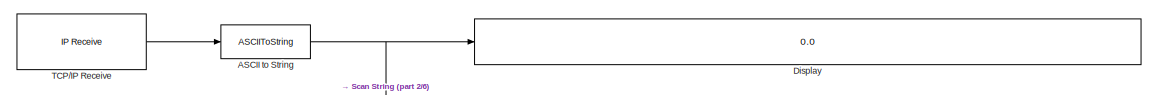
[diagram: root canvas - part 1/6, top right region]
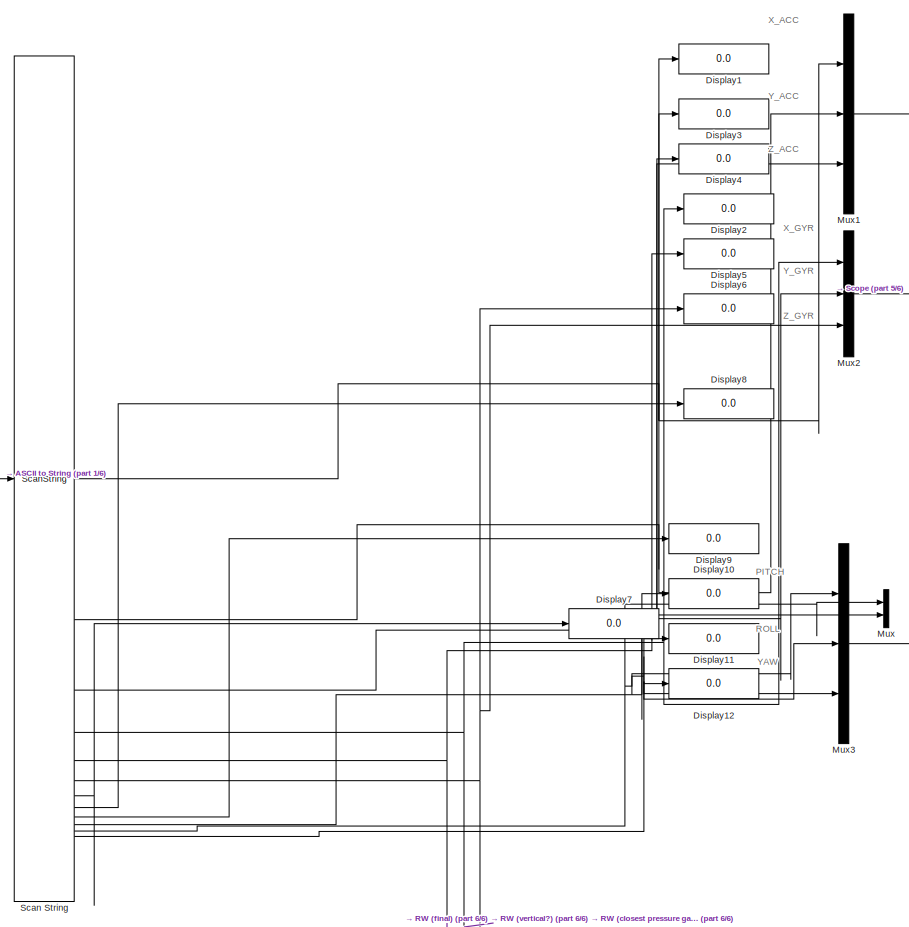
[diagram: root canvas - part 2/6, middle right region]
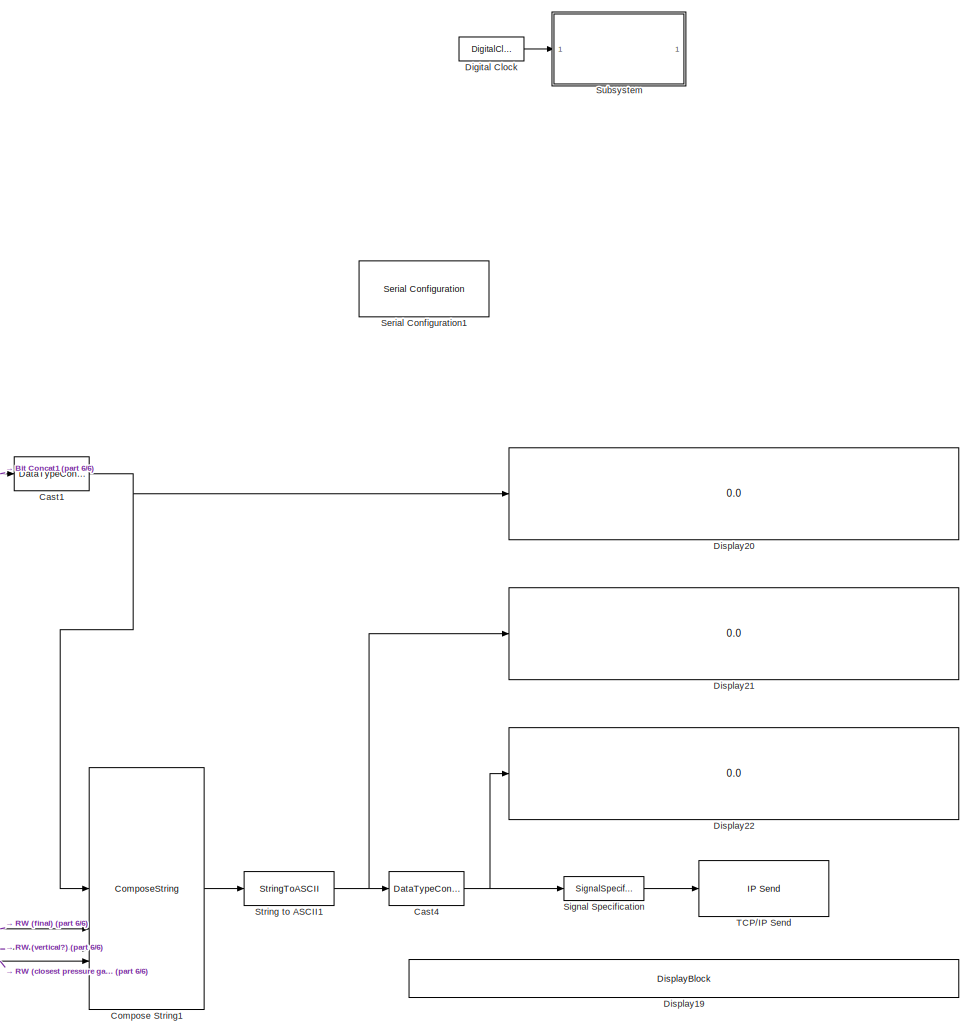
[diagram: root canvas - part 3/6, central region]
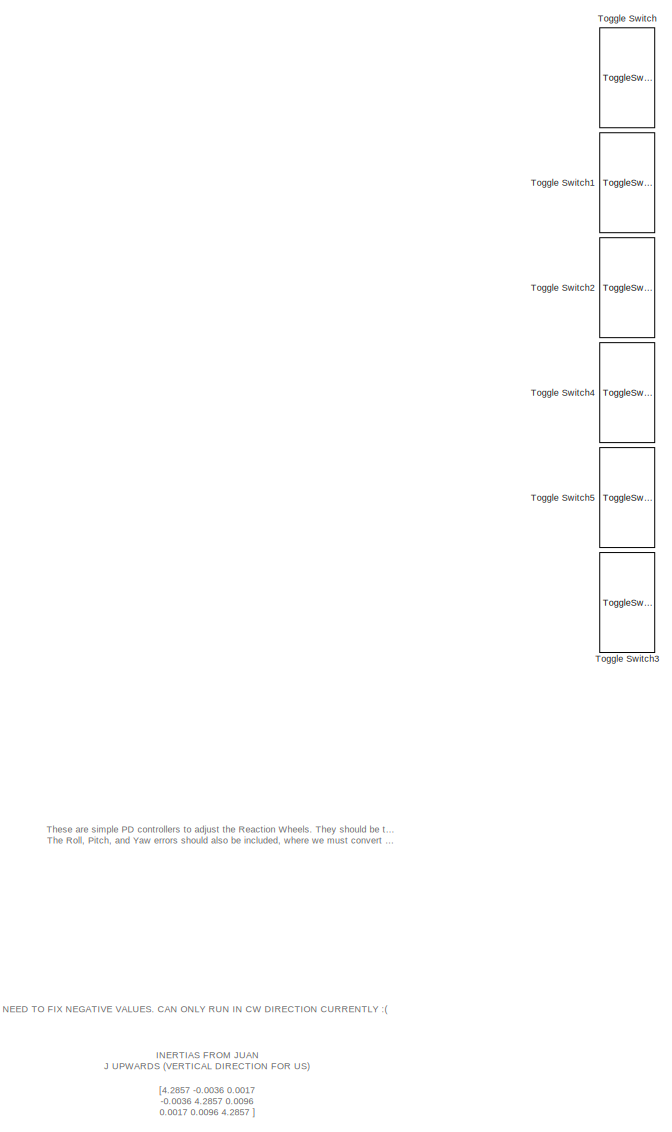
[diagram: root canvas - part 4/6, middle left region]
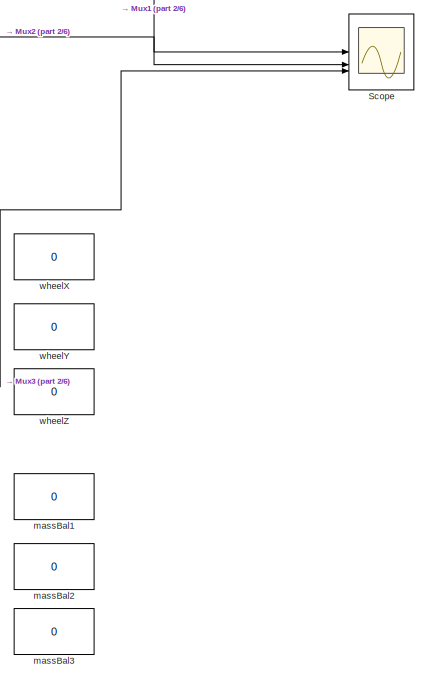
[diagram: root canvas - part 5/6, middle right region]
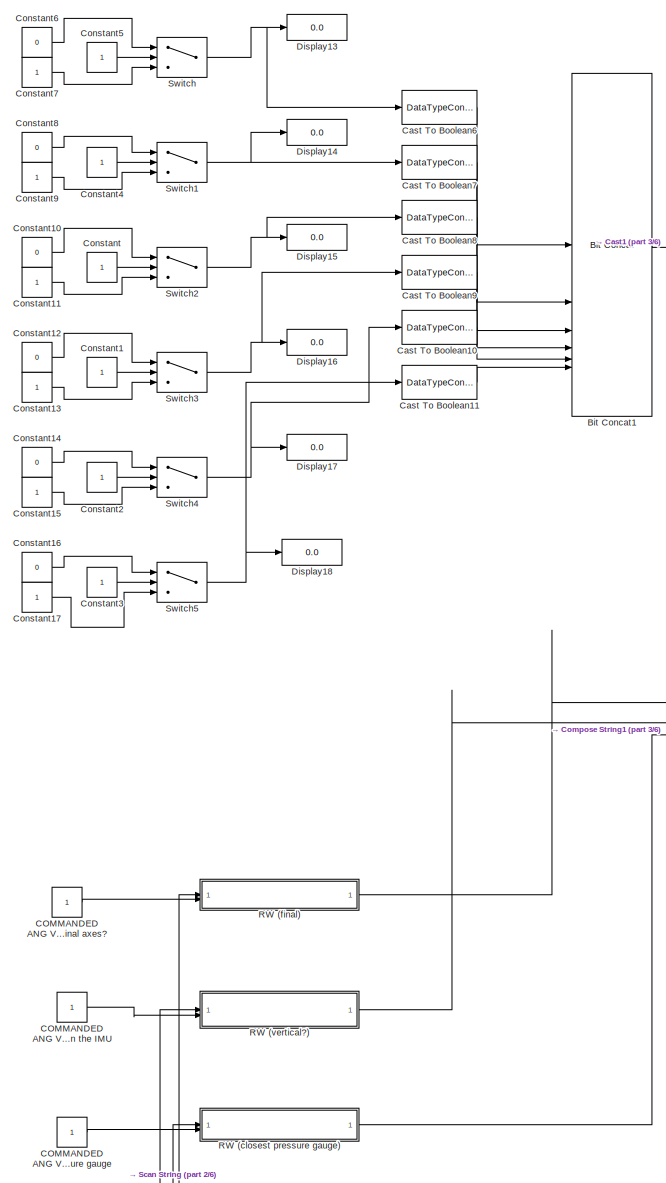
[diagram: root canvas - part 6/6, middle left region]
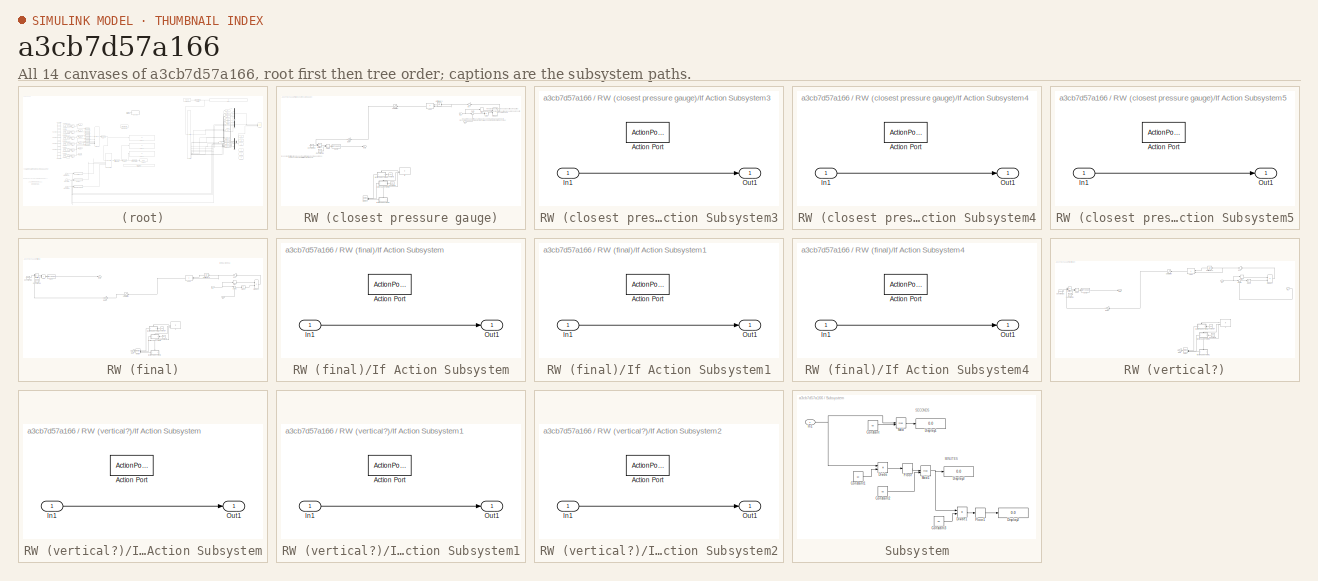
[diagram: thumbnail index - all 14 canvases of the model, root first then tree order]
MODEL slx_a3cb7d57a166
KIND model
CONFIG AbsTol = auto
CONFIG EnableMultiTasking = on
CONFIG FixedStep = .01
CONFIG MaxStep = auto
CONFIG MinStep = auto
CONFIG RelTol = 1e-3
CONFIG SampleTimeConstraint = Unconstrained
CONFIG SolverName = FixedStepAuto
CONFIG StartTime = 0.0
CONFIG StopTime = inf
BLOCK [ASCIIToString] ASCII to String
BLOCK [Reference] Bit Concat1  REF=hdlsllib/Logic and Bit
Operations/Bit Concat
  SourceBlock = hdlsllib/Logic and Bit\nOperations/Bit Concat
  SourceType = Bit Concat
BLOCK [Constant] COMMANDED ANG VELOCITY (PWM) IN RW about vertical axis? X is vertical on the IMU
BLOCK [Constant] COMMANDED ANG VELOCITY (PWM) IN RW closest to pressure gauge
BLOCK [Constant] COMMANDED ANG VELOCITY (PWM) IN RW final axes?
BLOCK [DataTypeConversion] Cast To Boolean10
  OutDataTypeStr = boolean
  RndMeth = Floor
  SaturateOnIntegerOverflow = off
BLOCK [DataTypeConversion] Cast To Boolean11
  OutDataTypeStr = boolean
  RndMeth = Floor
  SaturateOnIntegerOverflow = off
BLOCK [DataTypeConversion] Cast To Boolean6
  OutDataTypeStr = boolean
  RndMeth = Floor
  SaturateOnIntegerOverflow = off
BLOCK [DataTypeConversion] Cast To Boolean7
  OutDataTypeStr = boolean
  RndMeth = Floor
  SaturateOnIntegerOverflow = off
BLOCK [DataTypeConversion] Cast To Boolean8
  OutDataTypeStr = boolean
  RndMeth = Floor
  SaturateOnIntegerOverflow = off
BLOCK [DataTypeConversion] Cast To Boolean9
  OutDataTypeStr = boolean
  RndMeth = Floor
  SaturateOnIntegerOverflow = off
BLOCK [DataTypeConversion] Cast1
  OutDataTypeStr = int8
  RndMeth = Floor
  SaturateOnIntegerOverflow = off
BLOCK [DataTypeConversion] Cast4
  OutDataTypeStr = int8
  RndMeth = Floor
  SaturateOnIntegerOverflow = off
BLOCK [ComposeString] Compose String1
  Format = "%02d;%03d;%03d;%03d\n"
BLOCK [Constant] Constant
BLOCK [Constant] Constant1
BLOCK [Constant] Constant10
  Value = 0
BLOCK [Constant] Constant11
BLOCK [Constant] Constant12
  Value = 0
BLOCK [Constant] Constant13
BLOCK [Constant] Constant14
  Value = 0
BLOCK [Constant] Constant15
BLOCK [Constant] Constant16
  Value = 0
BLOCK [Constant] Constant17
BLOCK [Constant] Constant2
BLOCK [Constant] Constant3
BLOCK [Constant] Constant4
BLOCK [Constant] Constant5
BLOCK [Constant] Constant6
  Value = 0
BLOCK [Constant] Constant7
BLOCK [Constant] Constant8
  Value = 0
BLOCK [Constant] Constant9
BLOCK [DigitalClock] Digital Clock
BLOCK [Display] Display
  Decimation = 1
BLOCK [Display] Display1
  Decimation = 1
BLOCK [Display] Display10
  Decimation = 1
BLOCK [Display] Display11
  Decimation = 1
BLOCK [Display] Display12
  Decimation = 1
BLOCK [Display] Display13
  Decimation = 1
BLOCK [Display] Display14
  Decimation = 1
BLOCK [Display] Display15
  Decimation = 1
BLOCK [Display] Display16
  Decimation = 1
BLOCK [Display] Display17
  Decimation = 1
BLOCK [Display] Display18
  Decimation = 1
BLOCK [DisplayBlock] Display19
  Format = long
  LabelPosition = Hide
  Transparency = 1
BLOCK [Display] Display2
  Decimation = 1
BLOCK [Display] Display20
  Decimation = 1
BLOCK [Display] Display21
  Decimation = 1
BLOCK [Display] Display22
  Decimation = 1
BLOCK [Display] Display3
  Decimation = 1
BLOCK [Display] Display4
  Decimation = 1
BLOCK [Display] Display5
  Decimation = 1
BLOCK [Display] Display6
  Decimation = 1
BLOCK [Display] Display7
  Decimation = 1
BLOCK [Display] Display8
  Decimation = 1
BLOCK [Display] Display9
  Decimation = 1
BLOCK [Mux] Mux
  DisplayOption = bar
  Inputs = 2
BLOCK [Mux] Mux1
  DisplayOption = bar
  Inputs = 3
BLOCK [Mux] Mux2
  DisplayOption = bar
  Inputs = 3
BLOCK [Mux] Mux3
  DisplayOption = bar
  Inputs = 3
BLOCK [SubSystem] RW (closest pressure gauge)
BLOCK [Abs] RW (closest pressure gauge)/Abs
  SaturateOnIntegerOverflow = off
BLOCK [Sum] RW (closest pressure gauge)/Add2
  IconShape = rectangular
BLOCK [Sum] RW (closest pressure gauge)/Add3
  IconShape = rectangular
BLOCK [DataTypeConversion] RW (closest pressure gauge)/Cast3
  OutDataTypeStr = int16
  RndMeth = Floor
  SaturateOnIntegerOverflow = off
BLOCK [Constant] RW (closest pressure gauge)/Constant2
  Commented = on
  Value = -255
BLOCK [Constant] RW (closest pressure gauge)/Constant22
  Value = 255/100
BLOCK [Constant] RW (closest pressure gauge)/Constant23
  Value = 255
BLOCK [Constant] RW (closest pressure gauge)/Constant3
  Commented = on
  Value = 255
BLOCK [Gain] RW (closest pressure gauge)/Gain
  Gain = 100/255
BLOCK [SubSystem] RW (closest pressure gauge)/If Action Subsystem3
  Commented = on
  TreatAsAtomicUnit = on
BLOCK [ActionPort] RW (closest pressure gauge)/If Action Subsystem3/Action Port
  ActionPortLabel = if(u1 > 255)
BLOCK [Inport] RW (closest pressure gauge)/If Action Subsystem3/In1
BLOCK [Outport] RW (closest pressure gauge)/If Action Subsystem3/Out1
BLOCK [SubSystem] RW (closest pressure gauge)/If Action Subsystem4
  Commented = on
  TreatAsAtomicUnit = on
BLOCK [ActionPort] RW (closest pressure gauge)/If Action Subsystem4/Action Port
  ActionPortLabel = else
BLOCK [Inport] RW (closest pressure gauge)/If Action Subsystem4/In1
BLOCK [Outport] RW (closest pressure gauge)/If Action Subsystem4/Out1
BLOCK [SubSystem] RW (closest pressure gauge)/If Action Subsystem5
  Commented = on
  TreatAsAtomicUnit = on
BLOCK [ActionPort] RW (closest pressure gauge)/If Action Subsystem5/Action Port
  ActionPortLabel = elseif(u1< -255)
BLOCK [Inport] RW (closest pressure gauge)/If Action Subsystem5/In1
BLOCK [Outport] RW (closest pressure gauge)/If Action Subsystem5/Out1
BLOCK [If] RW (closest pressure gauge)/If1
  Commented = on
  ElseIfExpressions = u1< -255
  IfExpression = u1 > 255
BLOCK [Inport] RW (closest pressure gauge)/In1
BLOCK [Inport] RW (closest pressure gauge)/In2
  Port = 2
BLOCK [Gain] RW (closest pressure gauge)/Kp
  Gain = 5
BLOCK [Merge] RW (closest pressure gauge)/Merge1
  Commented = on
  Inputs = 3
BLOCK [Product] RW (closest pressure gauge)/Multiply2
BLOCK [Outport] RW (closest pressure gauge)/Out1
BLOCK [Product] RW (closest pressure gauge)/Product
BLOCK [Saturate] RW (closest pressure gauge)/Saturation
  LowerLimit = -255
  UpperLimit = 255
BLOCK [Signum] RW (closest pressure gauge)/Sign
BLOCK [Sum] RW (closest pressure gauge)/Sum
  Inputs = |+-
BLOCK [UnitDelay] RW (closest pressure gauge)/Unit Delay1
  HasFrameUpgradeWarning = on
  SampleTime = -1
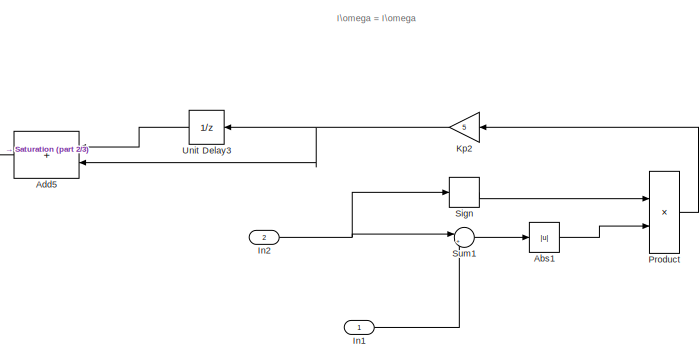
[diagram: RW (final) - part 1/3, top right region]
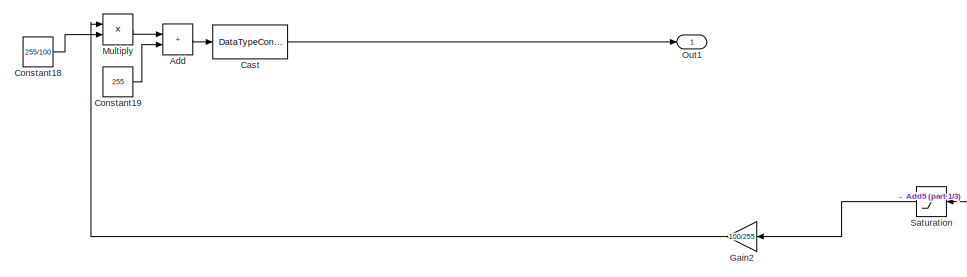
[diagram: RW (final) - part 2/3, top left region]
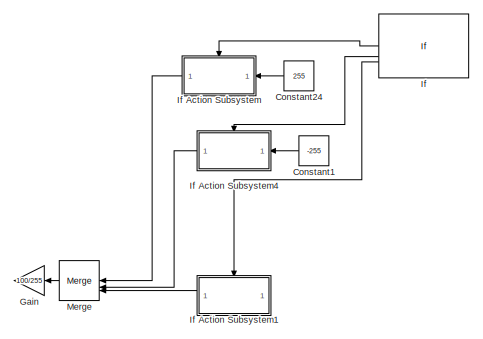
[diagram: RW (final) - part 3/3, bottom center region]
BLOCK [SubSystem] RW (final)
BLOCK [Abs] RW (final)/Abs1
  SaturateOnIntegerOverflow = off
BLOCK [Sum] RW (final)/Add
  IconShape = rectangular
BLOCK [Sum] RW (final)/Add5
  IconShape = rectangular
BLOCK [DataTypeConversion] RW (final)/Cast
  OutDataTypeStr = int16
  RndMeth = Floor
  SaturateOnIntegerOverflow = off
BLOCK [Constant] RW (final)/Constant1
  Commented = on
  Value = -255
BLOCK [Constant] RW (final)/Constant18
  Value = 255/100
BLOCK [Constant] RW (final)/Constant19
  Value = 255
BLOCK [Constant] RW (final)/Constant24
  Commented = on
  Value = 255
BLOCK [Gain] RW (final)/Gain
  Commented = on
  Gain = 100/255
BLOCK [Gain] RW (final)/Gain2
  Gain = 100/255
BLOCK [If] RW (final)/If
  Commented = on
  ElseIfExpressions = u1< -255
  IfExpression = u1 > 255
BLOCK [SubSystem] RW (final)/If Action Subsystem
  Commented = on
  TreatAsAtomicUnit = on
BLOCK [ActionPort] RW (final)/If Action Subsystem/Action Port
  ActionPortLabel = if(u1 > 255)
BLOCK [Inport] RW (final)/If Action Subsystem/In1
BLOCK [Outport] RW (final)/If Action Subsystem/Out1
BLOCK [SubSystem] RW (final)/If Action Subsystem1
  Commented = on
  TreatAsAtomicUnit = on
BLOCK [ActionPort] RW (final)/If Action Subsystem1/Action Port
  ActionPortLabel = else
BLOCK [Inport] RW (final)/If Action Subsystem1/In1
BLOCK [Outport] RW (final)/If Action Subsystem1/Out1
BLOCK [SubSystem] RW (final)/If Action Subsystem4
  Commented = on
  TreatAsAtomicUnit = on
BLOCK [ActionPort] RW (final)/If Action Subsystem4/Action Port
  ActionPortLabel = elseif(u1< -255)
BLOCK [Inport] RW (final)/If Action Subsystem4/In1
BLOCK [Outport] RW (final)/If Action Subsystem4/Out1
BLOCK [Inport] RW (final)/In1
BLOCK [Inport] RW (final)/In2
  Port = 2
BLOCK [Gain] RW (final)/Kp2
  Gain = 5
BLOCK [Merge] RW (final)/Merge
  Commented = on
  Inputs = 3
BLOCK [Product] RW (final)/Multiply
BLOCK [Outport] RW (final)/Out1
BLOCK [Product] RW (final)/Product
BLOCK [Saturate] RW (final)/Saturation
  LowerLimit = -255
  UpperLimit = 255
BLOCK [Signum] RW (final)/Sign
BLOCK [Sum] RW (final)/Sum1
  Inputs = |+-
BLOCK [UnitDelay] RW (final)/Unit Delay3
  HasFrameUpgradeWarning = on
  SampleTime = -1
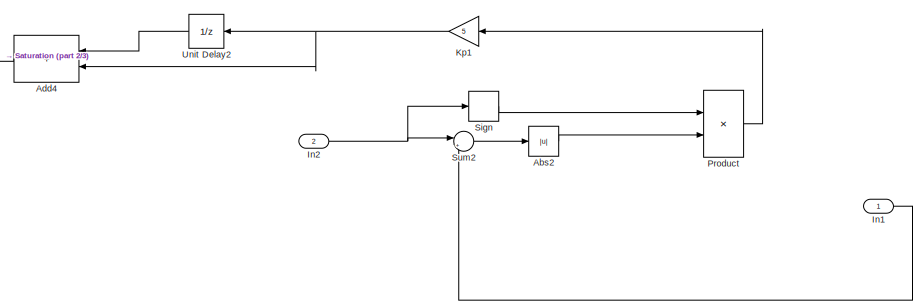
[diagram: RW (vertical?) - part 1/3, top right region]
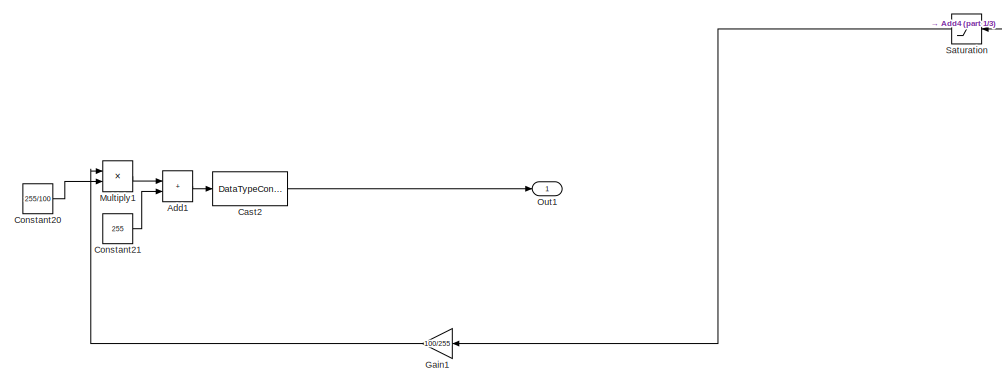
[diagram: RW (vertical?) - part 2/3, top left region]
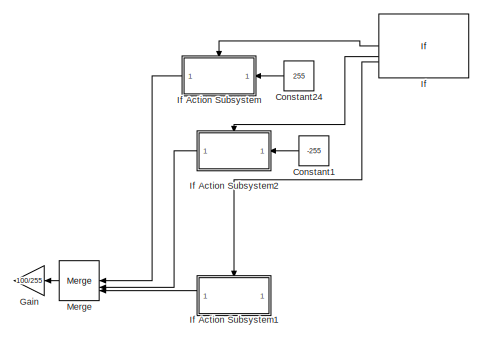
[diagram: RW (vertical?) - part 3/3, bottom center region]
BLOCK [SubSystem] RW (vertical?)
BLOCK [Abs] RW (vertical?)/Abs2
  SaturateOnIntegerOverflow = off
BLOCK [Sum] RW (vertical?)/Add1
  IconShape = rectangular
BLOCK [Sum] RW (vertical?)/Add4
  IconShape = rectangular
BLOCK [DataTypeConversion] RW (vertical?)/Cast2
  OutDataTypeStr = int16
  RndMeth = Floor
  SaturateOnIntegerOverflow = off
BLOCK [Constant] RW (vertical?)/Constant1
  Commented = on
  Value = -255
BLOCK [Constant] RW (vertical?)/Constant20
  Value = 255/100
BLOCK [Constant] RW (vertical?)/Constant21
  Value = 255
BLOCK [Constant] RW (vertical?)/Constant24
  Commented = on
  Value = 255
BLOCK [Gain] RW (vertical?)/Gain
  Commented = on
  Gain = 100/255
BLOCK [Gain] RW (vertical?)/Gain1
  Gain = 100/255
BLOCK [If] RW (vertical?)/If
  Commented = on
  ElseIfExpressions = u1< -255
  IfExpression = u1 > 255
BLOCK [SubSystem] RW (vertical?)/If Action Subsystem
  Commented = on
  TreatAsAtomicUnit = on
BLOCK [ActionPort] RW (vertical?)/If Action Subsystem/Action Port
  ActionPortLabel = if(u1 > 255)
BLOCK [Inport] RW (vertical?)/If Action Subsystem/In1
BLOCK [Outport] RW (vertical?)/If Action Subsystem/Out1
BLOCK [SubSystem] RW (vertical?)/If Action Subsystem1
  Commented = on
  TreatAsAtomicUnit = on
BLOCK [ActionPort] RW (vertical?)/If Action Subsystem1/Action Port
  ActionPortLabel = else
BLOCK [Inport] RW (vertical?)/If Action Subsystem1/In1
BLOCK [Outport] RW (vertical?)/If Action Subsystem1/Out1
BLOCK [SubSystem] RW (vertical?)/If Action Subsystem2
  Commented = on
  TreatAsAtomicUnit = on
BLOCK [ActionPort] RW (vertical?)/If Action Subsystem2/Action Port
  ActionPortLabel = elseif(u1< -255)
BLOCK [Inport] RW (vertical?)/If Action Subsystem2/In1
BLOCK [Outport] RW (vertical?)/If Action Subsystem2/Out1
BLOCK [Inport] RW (vertical?)/In1
BLOCK [Inport] RW (vertical?)/In2
  NameLocation = right
  Port = 2
BLOCK [Gain] RW (vertical?)/Kp1
  Gain = 5
BLOCK [Merge] RW (vertical?)/Merge
  Commented = on
  Inputs = 3
BLOCK [Product] RW (vertical?)/Multiply1
BLOCK [Outport] RW (vertical?)/Out1
BLOCK [Product] RW (vertical?)/Product
BLOCK [Saturate] RW (vertical?)/Saturation
  LowerLimit = -255
  UpperLimit = 255
BLOCK [Signum] RW (vertical?)/Sign
BLOCK [Sum] RW (vertical?)/Sum2
  Inputs = |+-
BLOCK [UnitDelay] RW (vertical?)/Unit Delay2
  HasFrameUpgradeWarning = on
  SampleTime = -1
BLOCK [ScanString] Scan String
  Format = "%f,%f,%f,%f,%f,%f,%f,%f,%f,%f,%f,%f"
BLOCK [Scope] Scope
  Floating = off
  NumInputPorts = 3
  ScopeSpecificationString = Simulink.scopes.TimeScopeBlockCfg('CurrentConfiguration', extmgr.ConfigurationSet(extmgr.Configuration('Core','General UI',true),extmgr.Configuration('Core','Source UI',true),extmgr.Configuration('Sources','WiredSimulink',true),extmgr.Configuration('Visuals','Time Domain',true,'SerializedDisplays',{struct('MinYLimReal','-2.64375','MaxYLimReal','2.505','YLabelReal','','MinYLimMag','0.00000','MaxYLi...<+3619ch>
BLOCK [Reference] Serial Configuration1  REF=instrumentseriallib/Serial Configuration
  Commented = on
  LibrarySourceBlock = instrumentlib/Serial Configuration
  Priority = -200000
  SourceBlock = instrumentseriallib/Serial Configuration
  SourceType = system.SerialConfiguration
BLOCK [SignalSpecification] Signal Specification
  LockScale = on
  SampleTime = .01
BLOCK [StringToASCII] String to ASCII1
  OutputVectorSize = 15
BLOCK [SubSystem] Subsystem
BLOCK [Constant] Subsystem/Constant
  Value = 60
BLOCK [Constant] Subsystem/Constant1
  Value = 60
BLOCK [Constant] Subsystem/Constant2
  Value = 60
BLOCK [Constant] Subsystem/Constant3
  Value = 60
BLOCK [Display] Subsystem/Display1
  Decimation = 1
BLOCK [Display] Subsystem/Display2
  Decimation = 1
BLOCK [Display] Subsystem/Display3
  Decimation = 1
BLOCK [Product] Subsystem/Divide
  Inputs = */
BLOCK [Product] Subsystem/Divide1
  Inputs = */
BLOCK [Rounding] Subsystem/Floor
BLOCK [Rounding] Subsystem/Floor1
BLOCK [Inport] Subsystem/In1
BLOCK [Math] Subsystem/Mod
  Operator = mod
  SignedPower = on
BLOCK [Math] Subsystem/Mod1
  Operator = mod
  SignedPower = on
BLOCK [Switch] Switch
  Criteria = u2 > Threshold
  InputSameDT = off
  SaturateOnIntegerOverflow = off
BLOCK [Switch] Switch1
  Criteria = u2 > Threshold
  InputSameDT = off
  SaturateOnIntegerOverflow = off
BLOCK [Switch] Switch2
  Criteria = u2 > Threshold
  InputSameDT = off
  SaturateOnIntegerOverflow = off
BLOCK [Switch] Switch3
  Criteria = u2 > Threshold
  InputSameDT = off
  SaturateOnIntegerOverflow = off
BLOCK [Switch] Switch4
  Criteria = u2 > Threshold
  InputSameDT = off
  SaturateOnIntegerOverflow = off
BLOCK [Switch] Switch5
  Criteria = u2 > Threshold
  InputSameDT = off
  SaturateOnIntegerOverflow = off
BLOCK [Reference] TCP//IP Receive  REF=instrumentlib/TCP//IP Receive
  SourceBlock = instrumentlib/TCP//IP Receive
  SourceType = instrument.system.TCPIPReceive
BLOCK [Reference] TCP//IP Send  REF=instrumentlib/TCP//IP Send
  SourceBlock = instrumentlib/TCP//IP Send
  SourceType = instrument.system.TCPIPSend
BLOCK [ToggleSwitchBlock] Toggle Switch
BLOCK [ToggleSwitchBlock] Toggle Switch1
BLOCK [ToggleSwitchBlock] Toggle Switch2
BLOCK [ToggleSwitchBlock] Toggle Switch3
BLOCK [ToggleSwitchBlock] Toggle Switch4
BLOCK [ToggleSwitchBlock] Toggle Switch5
BLOCK [Constant] massBal1
  Commented = on
  Value = 0
BLOCK [Constant] massBal2
  Commented = on
  Value = 0
BLOCK [Constant] massBal3
  Commented = on
  Value = 0
BLOCK [Constant] wheelX
  Commented = on
  Value = 0
BLOCK [Constant] wheelY
  Commented = on
  Value = 0
BLOCK [Constant] wheelZ
  Commented = on
  Value = 0
ANNOTATION (root): These are simple PD controllers to adjust the Reaction Wheels. They should be tuned on each axis. They take the intended command, calculate the error, and adjust accordingly. The Roll, Pitch, and Yaw errors should also be included, where we must convert Euler Angles to quaternions to then calculate errors.
ANNOTATION (root): INERTIAS FROM JUAN J UPWARDS (VERTICAL DIRECTION FOR US)
ANNOTATION (root): NEED TO FIX NEGATIVE VALUES. CAN ONLY RUN IN CW DIRECTION CURRENTLY :(
ANNOTATION (root): PITCH
ANNOTATION (root): ROLL
ANNOTATION (root): X_ACC
ANNOTATION (root): X_GYR
ANNOTATION (root): YAW
ANNOTATION (root): Y_ACC
ANNOTATION (root): Y_GYR
ANNOTATION (root): Z_ACC
ANNOTATION (root): Z_GYR
ANNOTATION (root): [4.2857 -0.0036 0.0017 -0.0036 4.2857 0.0096 0.0017 0.0096 4.2857 ]
ANNOTATION RW (closest pressure gauge): Ensure these unit mesh. 1 is the gyroscope reading: angular velocity 2 is commanded angular velocity in PWM, so need to map them to each other.
ANNOTATION RW (closest pressure gauge): From sign(), we get if commanded is positive or negative then can multiply by the error to see if we are over or undershooting the commanded
ANNOTATION RW (closest pressure gauge): This constant multiplication gives us the error*PWM percentage out of 100 So, we know what PWM it will give from this, as in
ANNOTATION RW (final): I\omega = I\omega
ANNOTATION Subsystem: MINUTES
ANNOTATION Subsystem: SECONDS
NET ASCII to String:1 -> Display:1, Scan String:1
LINE Bit Concat1:1 -> Cast1:1
LINE COMMANDED ANG VELOCITY (PWM) IN RW about vertical axis? X is vertical on the IMU:1 -> RW (vertical?):2
LINE COMMANDED ANG VELOCITY (PWM) IN RW closest to pressure gauge:1 -> RW (closest pressure gauge):2
LINE COMMANDED ANG VELOCITY (PWM) IN RW final axes?:1 -> RW (final):2
LINE Cast To Boolean10:1 -> Bit Concat1:5
LINE Cast To Boolean11:1 -> Bit Concat1:6
LINE Cast To Boolean6:1 -> Bit Concat1:1
LINE Cast To Boolean7:1 -> Bit Concat1:2
LINE Cast To Boolean8:1 -> Bit Concat1:3
LINE Cast To Boolean9:1 -> Bit Concat1:4
NET Cast1:1 -> Compose String1:1, Display20:1
NET Cast4:1 -> Display22:1, Signal Specification:1
LINE Compose String1:1 -> String to ASCII1:1
LINE Constant10:1 -> Switch2:1
LINE Constant11:1 -> Switch2:3
LINE Constant12:1 -> Switch3:1
LINE Constant13:1 -> Switch3:3
LINE Constant14:1 -> Switch4:1
LINE Constant15:1 -> Switch4:3
LINE Constant16:1 -> Switch5:1
LINE Constant17:1 -> Switch5:3
LINE Constant1:1 -> Switch3:2
LINE Constant2:1 -> Switch4:2
LINE Constant3:1 -> Switch5:2
LINE Constant4:1 -> Switch1:2
LINE Constant5:1 -> Switch:2
LINE Constant6:1 -> Switch:1
LINE Constant7:1 -> Switch:3
LINE Constant8:1 -> Switch1:1
LINE Constant9:1 -> Switch1:3
LINE Constant:1 -> Switch2:2
LINE Digital Clock:1 -> Subsystem:1
LINE Mux1:1 -> Scope:1
LINE Mux2:1 -> Scope:2
LINE Mux3:1 -> Scope:3
LINE RW (closest pressure gauge)/Abs:1 -> RW (closest pressure gauge)/Product:2
LINE RW (closest pressure gauge)/Add2:1 -> RW (closest pressure gauge)/Cast3:1
LINE RW (closest pressure gauge)/Add3:1 -> RW (closest pressure gauge)/Saturation:1
LINE RW (closest pressure gauge)/Cast3:1 -> RW (closest pressure gauge)/Out1:1
LINE RW (closest pressure gauge)/Constant22:1 -> RW (closest pressure gauge)/Multiply2:2
LINE RW (closest pressure gauge)/Constant23:1 -> RW (closest pressure gauge)/Add2:2
LINE RW (closest pressure gauge)/Constant2:1 -> RW (closest pressure gauge)/If Action Subsystem5:1
LINE RW (closest pressure gauge)/Constant3:1 -> RW (closest pressure gauge)/If Action Subsystem3:1
LINE RW (closest pressure gauge)/Gain:1 -> RW (closest pressure gauge)/Multiply2:1
LINE RW (closest pressure gauge)/If Action Subsystem3/In1:1 -> RW (closest pressure gauge)/If Action Subsystem3/Out1:1
LINE RW (closest pressure gauge)/If Action Subsystem3:1 -> RW (closest pressure gauge)/Merge1:1
LINE RW (closest pressure gauge)/If Action Subsystem4/In1:1 -> RW (closest pressure gauge)/If Action Subsystem4/Out1:1
LINE RW (closest pressure gauge)/If Action Subsystem4:1 -> RW (closest pressure gauge)/Merge1:3
LINE RW (closest pressure gauge)/If Action Subsystem5/In1:1 -> RW (closest pressure gauge)/If Action Subsystem5/Out1:1
LINE RW (closest pressure gauge)/If Action Subsystem5:1 -> RW (closest pressure gauge)/Merge1:2
LINE RW (closest pressure gauge)/If1:1 -> RW (closest pressure gauge)/If Action Subsystem3:ifaction
LINE RW (closest pressure gauge)/If1:2 -> RW (closest pressure gauge)/If Action Subsystem5:ifaction
LINE RW (closest pressure gauge)/If1:3 -> RW (closest pressure gauge)/If Action Subsystem4:ifaction
LINE RW (closest pressure gauge)/In1:1 -> RW (closest pressure gauge)/Sum:2
NET RW (closest pressure gauge)/In2:1 -> RW (closest pressure gauge)/Sign:1, RW (closest pressure gauge)/Sum:1
NET RW (closest pressure gauge)/Kp:1 -> RW (closest pressure gauge)/Add3:2, RW (closest pressure gauge)/Unit Delay1:1
LINE RW (closest pressure gauge)/Multiply2:1 -> RW (closest pressure gauge)/Add2:1
LINE RW (closest pressure gauge)/Product:1 -> RW (closest pressure gauge)/Kp:1
LINE RW (closest pressure gauge)/Saturation:1 -> RW (closest pressure gauge)/Gain:1
LINE RW (closest pressure gauge)/Sign:1 -> RW (closest pressure gauge)/Product:1
LINE RW (closest pressure gauge)/Sum:1 -> RW (closest pressure gauge)/Abs:1
LINE RW (closest pressure gauge)/Unit Delay1:1 -> RW (closest pressure gauge)/Add3:1
LINE RW (closest pressure gauge):1 -> Compose String1:4
LINE RW (final)/Abs1:1 -> RW (final)/Product:2
LINE RW (final)/Add5:1 -> RW (final)/Saturation:1
LINE RW (final)/Add:1 -> RW (final)/Cast:1
LINE RW (final)/Cast:1 -> RW (final)/Out1:1
LINE RW (final)/Constant18:1 -> RW (final)/Multiply:2
LINE RW (final)/Constant19:1 -> RW (final)/Add:2
LINE RW (final)/Constant1:1 -> RW (final)/If Action Subsystem4:1
LINE RW (final)/Constant24:1 -> RW (final)/If Action Subsystem:1
LINE RW (final)/Gain2:1 -> RW (final)/Multiply:1
LINE RW (final)/If Action Subsystem/In1:1 -> RW (final)/If Action Subsystem/Out1:1
LINE RW (final)/If Action Subsystem1/In1:1 -> RW (final)/If Action Subsystem1/Out1:1
LINE RW (final)/If Action Subsystem1:1 -> RW (final)/Merge:3
LINE RW (final)/If Action Subsystem4/In1:1 -> RW (final)/If Action Subsystem4/Out1:1
LINE RW (final)/If Action Subsystem4:1 -> RW (final)/Merge:2
LINE RW (final)/If Action Subsystem:1 -> RW (final)/Merge:1
LINE RW (final)/If:1 -> RW (final)/If Action Subsystem:ifaction
LINE RW (final)/If:2 -> RW (final)/If Action Subsystem4:ifaction
LINE RW (final)/If:3 -> RW (final)/If Action Subsystem1:ifaction
LINE RW (final)/In1:1 -> RW (final)/Sum1:2
NET RW (final)/In2:1 -> RW (final)/Sign:1, RW (final)/Sum1:1
NET RW (final)/Kp2:1 -> RW (final)/Add5:2, RW (final)/Unit Delay3:1
LINE RW (final)/Merge:1 -> RW (final)/Gain:1
LINE RW (final)/Multiply:1 -> RW (final)/Add:1
LINE RW (final)/Product:1 -> RW (final)/Kp2:1
LINE RW (final)/Saturation:1 -> RW (final)/Gain2:1
LINE RW (final)/Sign:1 -> RW (final)/Product:1
LINE RW (final)/Sum1:1 -> RW (final)/Abs1:1
LINE RW (final)/Unit Delay3:1 -> RW (final)/Add5:1
LINE RW (final):1 -> Compose String1:2
LINE RW (vertical?)/Abs2:1 -> RW (vertical?)/Product:2
LINE RW (vertical?)/Add1:1 -> RW (vertical?)/Cast2:1
LINE RW (vertical?)/Add4:1 -> RW (vertical?)/Saturation:1
LINE RW (vertical?)/Cast2:1 -> RW (vertical?)/Out1:1
LINE RW (vertical?)/Constant1:1 -> RW (vertical?)/If Action Subsystem2:1
LINE RW (vertical?)/Constant20:1 -> RW (vertical?)/Multiply1:2
LINE RW (vertical?)/Constant21:1 -> RW (vertical?)/Add1:2
LINE RW (vertical?)/Constant24:1 -> RW (vertical?)/If Action Subsystem:1
LINE RW (vertical?)/Gain1:1 -> RW (vertical?)/Multiply1:1
LINE RW (vertical?)/If Action Subsystem/In1:1 -> RW (vertical?)/If Action Subsystem/Out1:1
LINE RW (vertical?)/If Action Subsystem1/In1:1 -> RW (vertical?)/If Action Subsystem1/Out1:1
LINE RW (vertical?)/If Action Subsystem1:1 -> RW (vertical?)/Merge:3
LINE RW (vertical?)/If Action Subsystem2/In1:1 -> RW (vertical?)/If Action Subsystem2/Out1:1
LINE RW (vertical?)/If Action Subsystem2:1 -> RW (vertical?)/Merge:2
LINE RW (vertical?)/If Action Subsystem:1 -> RW (vertical?)/Merge:1
LINE RW (vertical?)/If:1 -> RW (vertical?)/If Action Subsystem:ifaction
LINE RW (vertical?)/If:2 -> RW (vertical?)/If Action Subsystem2:ifaction
LINE RW (vertical?)/If:3 -> RW (vertical?)/If Action Subsystem1:ifaction
LINE RW (vertical?)/In1:1 -> RW (vertical?)/Sum2:2
NET RW (vertical?)/In2:1 -> RW (vertical?)/Sign:1, RW (vertical?)/Sum2:1
NET RW (vertical?)/Kp1:1 -> RW (vertical?)/Add4:2, RW (vertical?)/Unit Delay2:1
LINE RW (vertical?)/Merge:1 -> RW (vertical?)/Gain:1
LINE RW (vertical?)/Multiply1:1 -> RW (vertical?)/Add1:1
LINE RW (vertical?)/Product:1 -> RW (vertical?)/Kp1:1
LINE RW (vertical?)/Saturation:1 -> RW (vertical?)/Gain1:1
LINE RW (vertical?)/Sign:1 -> RW (vertical?)/Product:1
LINE RW (vertical?)/Sum2:1 -> RW (vertical?)/Abs2:1
LINE RW (vertical?)/Unit Delay2:1 -> RW (vertical?)/Add4:1
LINE RW (vertical?):1 -> Compose String1:3
NET Scan String:1 -> Display1:1, Mux1:1
NET Scan String:10 -> Display10:1, Mux3:1, Mux:2
NET Scan String:11 -> Display11:1, Mux3:2, Mux:1
NET Scan String:12 -> Display12:1, Mux3:3
NET Scan String:2 -> Display3:1, Mux1:2
NET Scan String:3 -> Display4:1, Mux1:3
NET Scan String:4 -> Display2:1, Mux2:1, RW (vertical?):1
NET Scan String:5 -> Display5:1, Mux2:2, RW (final):1
NET Scan String:6 -> Display6:1, Mux2:3, RW (closest pressure gauge):1
LINE Scan String:7 -> Display7:1
LINE Scan String:8 -> Display8:1
LINE Scan String:9 -> Display9:1
LINE Signal Specification:1 -> TCP//IP Send:1
NET String to ASCII1:1 -> Cast4:1, Display21:1
LINE Subsystem/Constant1:1 -> Subsystem/Divide:2
LINE Subsystem/Constant2:1 -> Subsystem/Mod1:2
LINE Subsystem/Constant3:1 -> Subsystem/Divide1:2
LINE Subsystem/Constant:1 -> Subsystem/Mod:2
LINE Subsystem/Divide1:1 -> Subsystem/Floor1:1
LINE Subsystem/Divide:1 -> Subsystem/Floor:1
LINE Subsystem/Floor1:1 -> Subsystem/Display2:1
LINE Subsystem/Floor:1 -> Subsystem/Mod1:1
NET Subsystem/In1:1 -> Subsystem/Divide:1, Subsystem/Mod:1
NET Subsystem/Mod1:1 -> Subsystem/Display3:1, Subsystem/Divide1:1
LINE Subsystem/Mod:1 -> Subsystem/Display1:1
NET Switch1:1 -> Cast To Boolean7:1, Display14:1
NET Switch2:1 -> Cast To Boolean8:1, Display15:1
NET Switch3:1 -> Cast To Boolean9:1, Display16:1
NET Switch4:1 -> Cast To Boolean10:1, Display17:1
NET Switch5:1 -> Cast To Boolean11:1, Display18:1
NET Switch:1 -> Cast To Boolean6:1, Display13:1
LINE TCP//IP Receive:1 -> ASCII to String:1
note: NET lines group one-source signal fan-out (src -> all destinations, sorted); 1:1 wires keep LINE
